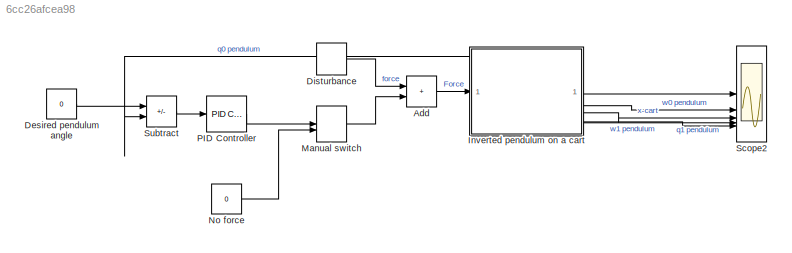
MODEL slx_6cc26afcea98
KIND model
CONFIG AbsTol = 1e-3
CONFIG EnableMultiTasking = on
CONFIG FixedStep = auto
CONFIG MaxStep = auto
CONFIG MinStep = auto
CONFIG RelTol = 1e-3
CONFIG SampleTimeConstraint = Unconstrained
CONFIG SolverName = VariableStepAuto
CONFIG StartTime = 0.0
CONFIG StopTime = 10
BLOCK [Sum] Add
  IconShape = rectangular
BLOCK [Constant] Desired pendulum angle
  Value = 0
BLOCK [DiscretePulseGenerator] Disturbance
  Amplitude = 1000
  Period = 10
  PhaseDelay = 1
  PulseType = Time based
  PulseWidth = 0.01
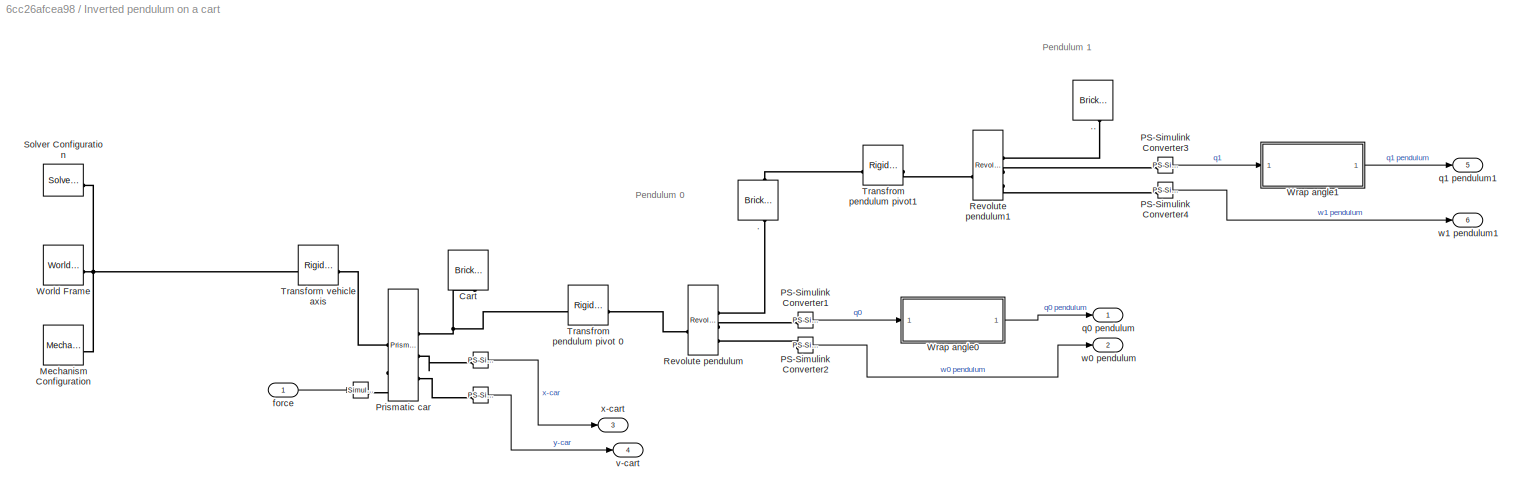
BLOCK [SubSystem] Inverted pendulum on a cart
BLOCK [Reference] Inverted pendulum on a cart/   REF=nesl_utility/PS-Simulink
Converter
  SourceBlock = nesl_utility/PS-Simulink\nConverter
  SourceType = PS-Simulink\nConverter
BLOCK [Reference] Inverted pendulum on a cart/     REF=nesl_utility/Simulink-PS
Converter
  SourceBlock = nesl_utility/Simulink-PS\nConverter
  SourceType = Simulink-PS\nConverter
BLOCK [Reference] Inverted pendulum on a cart/.  REF=sm_lib/Body Elements/Brick Solid
  NameLocation = right
  SourceBlock = sm_lib/Body Elements/Brick Solid
  SourceType = Brick Solid
BLOCK [Reference] Inverted pendulum on a cart/..  REF=sm_lib/Body Elements/Brick Solid
  NameLocation = right
  SourceBlock = sm_lib/Body Elements/Brick Solid
  SourceType = Brick Solid
BLOCK [Reference] Inverted pendulum on a cart/Cart  REF=sm_lib/Body Elements/Brick Solid
  NameLocation = left
  SourceBlock = sm_lib/Body Elements/Brick Solid
  SourceType = Brick Solid
BLOCK [Reference] Inverted pendulum on a cart/Mechanism Configuration  REF=sm_lib/Utilities/Mechanism
Configuration
  SourceBlock = sm_lib/Utilities/Mechanism\nConfiguration
  SourceType = Mechanism\nConfiguration
BLOCK [Reference] Inverted pendulum on a cart/PS-Simulink Converter1  REF=nesl_utility/PS-Simulink
Converter
  SourceBlock = nesl_utility/PS-Simulink\nConverter
  SourceType = PS-Simulink\nConverter
BLOCK [Reference] Inverted pendulum on a cart/PS-Simulink Converter2  REF=nesl_utility/PS-Simulink
Converter
  SourceBlock = nesl_utility/PS-Simulink\nConverter
  SourceType = PS-Simulink\nConverter
BLOCK [Reference] Inverted pendulum on a cart/PS-Simulink Converter3  REF=nesl_utility/PS-Simulink
Converter
  SourceBlock = nesl_utility/PS-Simulink\nConverter
  SourceType = PS-Simulink\nConverter
BLOCK [Reference] Inverted pendulum on a cart/PS-Simulink Converter4  REF=nesl_utility/PS-Simulink
Converter
  SourceBlock = nesl_utility/PS-Simulink\nConverter
  SourceType = PS-Simulink\nConverter
BLOCK [Reference] Inverted pendulum on a cart/Prismatic car  REF=sm_lib/Joints/Prismatic
Joint
  SourceBlock = sm_lib/Joints/Prismatic\nJoint
  SourceType = Prismatic\nJoint
BLOCK [Reference] Inverted pendulum on a cart/Revolute pendulum  REF=sm_lib/Joints/Revolute Joint
  SourceBlock = sm_lib/Joints/Revolute Joint
  SourceType = Revolute Joint
BLOCK [Reference] Inverted pendulum on a cart/Revolute pendulum1  REF=sm_lib/Joints/Revolute Joint
  SourceBlock = sm_lib/Joints/Revolute Joint
  SourceType = Revolute Joint
BLOCK [Reference] Inverted pendulum on a cart/Solver Configuration  REF=nesl_utility/Solver
Configuration
  SourceBlock = nesl_utility/Solver\nConfiguration
  SourceType = Solver\nConfiguration
BLOCK [Reference] Inverted pendulum on a cart/Transform vehicle axis  REF=sm_lib/Frames and
Transforms/Rigid
Transform
  SourceBlock = sm_lib/Frames and\nTransforms/Rigid\nTransform
  SourceType = Rigid\nTransform
BLOCK [Reference] Inverted pendulum on a cart/Transfrom pendulum pivot 0  REF=sm_lib/Frames and
Transforms/Rigid
Transform
  SourceBlock = sm_lib/Frames and\nTransforms/Rigid\nTransform
  SourceType = Rigid\nTransform
BLOCK [Reference] Inverted pendulum on a cart/Transfrom pendulum pivot1  REF=sm_lib/Frames and
Transforms/Rigid
Transform
  SourceBlock = sm_lib/Frames and\nTransforms/Rigid\nTransform
  SourceType = Rigid\nTransform
BLOCK [Reference] Inverted pendulum on a cart/World Frame  REF=sm_lib/Frames and
Transforms/World Frame
  SourceBlock = sm_lib/Frames and\nTransforms/World Frame
  SourceType = World Frame
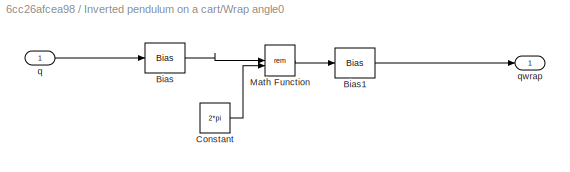
BLOCK [SubSystem] Inverted pendulum on a cart/Wrap angle0
BLOCK [Bias] Inverted pendulum on a cart/Wrap angle0/Bias
  Bias = pi
  SaturateOnIntegerOverflow = off
BLOCK [Bias] Inverted pendulum on a cart/Wrap angle0/Bias1
  Bias = -pi
  SaturateOnIntegerOverflow = off
BLOCK [Constant] Inverted pendulum on a cart/Wrap angle0/Constant
  Value = 2*pi
BLOCK [Math] Inverted pendulum on a cart/Wrap angle0/Math Function
  Operator = rem
BLOCK [Inport] Inverted pendulum on a cart/Wrap angle0/q
BLOCK [Outport] Inverted pendulum on a cart/Wrap angle0/qwrap
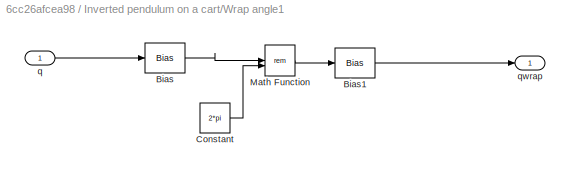
BLOCK [SubSystem] Inverted pendulum on a cart/Wrap angle1
BLOCK [Bias] Inverted pendulum on a cart/Wrap angle1/Bias
  Bias = pi
  SaturateOnIntegerOverflow = off
BLOCK [Bias] Inverted pendulum on a cart/Wrap angle1/Bias1
  Bias = -pi
  SaturateOnIntegerOverflow = off
BLOCK [Constant] Inverted pendulum on a cart/Wrap angle1/Constant
  Value = 2*pi
BLOCK [Math] Inverted pendulum on a cart/Wrap angle1/Math Function
  Operator = rem
BLOCK [Inport] Inverted pendulum on a cart/Wrap angle1/q
BLOCK [Outport] Inverted pendulum on a cart/Wrap angle1/qwrap
BLOCK [Inport] Inverted pendulum on a cart/force
BLOCK [Outport] Inverted pendulum on a cart/q0 pendulum
BLOCK [Outport] Inverted pendulum on a cart/q1 pendulum1
  Port = 5
BLOCK [Outport] Inverted pendulum on a cart/v-cart
  Port = 4
BLOCK [Outport] Inverted pendulum on a cart/w0 pendulum
  Port = 2
BLOCK [Outport] Inverted pendulum on a cart/w1 pendulum1
  Port = 6
BLOCK [Outport] Inverted pendulum on a cart/x-cart
  Port = 3
BLOCK [ManualSwitch] Manual switch
BLOCK [Constant] No force
  Value = 0
BLOCK [Reference] PID Controller  REF=slpidlib/PID Controller
  LibrarySourceBlock = simulink/Continuous/PID Controller
  SourceBlock = slpidlib/PID Controller
  SourceType = PID 1dof
BLOCK [Scope] Scope2
  Floating = off
  NumInputPorts = 5
  ScopeSpecificationString = Simulink.scopes.TimeScopeBlockCfg('CurrentConfiguration', extmgr.ConfigurationSet(extmgr.Configuration('Core','General UI',true),extmgr.Configuration('Core','Source UI',true),extmgr.Configuration('Sources','WiredSimulink',true,'DataLoggingVariableName','ScopeData1'),extmgr.Configuration('Visuals','Time Domain',true,'SerializedDisplays',{struct('MinYLimReal','-0.00051','MaxYLimReal','0.00449','YLab...<+4805ch>
BLOCK [Sum] Subtract
  IconShape = rectangular
  Inputs = +-
ANNOTATION Inverted pendulum on a cart: Pendulum 0
ANNOTATION Inverted pendulum on a cart: Pendulum 1
LINE Add:1 -> Inverted pendulum on a cart:1
LINE Desired pendulum angle:1 -> Subtract:1
LINE Disturbance:1 -> Add:1
NET Inverted pendulum on a cart/ :1 -> Inverted pendulum on a cart/v-cart:1, Inverted pendulum on a cart/x-cart:1
LINE Inverted pendulum on a cart/PS-Simulink Converter1:1 -> Inverted pendulum on a cart/Wrap angle0:1
LINE Inverted pendulum on a cart/PS-Simulink Converter2:1 -> Inverted pendulum on a cart/w0 pendulum:1
LINE Inverted pendulum on a cart/PS-Simulink Converter3:1 -> Inverted pendulum on a cart/Wrap angle1:1
LINE Inverted pendulum on a cart/PS-Simulink Converter4:1 -> Inverted pendulum on a cart/w1 pendulum1:1
LINE Inverted pendulum on a cart/Wrap angle0/Bias1:1 -> Inverted pendulum on a cart/Wrap angle0/qwrap:1
LINE Inverted pendulum on a cart/Wrap angle0/Bias:1 -> Inverted pendulum on a cart/Wrap angle0/Math Function:1
LINE Inverted pendulum on a cart/Wrap angle0/Constant:1 -> Inverted pendulum on a cart/Wrap angle0/Math Function:2
LINE Inverted pendulum on a cart/Wrap angle0/Math Function:1 -> Inverted pendulum on a cart/Wrap angle0/Bias1:1
LINE Inverted pendulum on a cart/Wrap angle0/q:1 -> Inverted pendulum on a cart/Wrap angle0/Bias:1
LINE Inverted pendulum on a cart/Wrap angle0:1 -> Inverted pendulum on a cart/q0 pendulum:1
LINE Inverted pendulum on a cart/Wrap angle1/Bias1:1 -> Inverted pendulum on a cart/Wrap angle1/qwrap:1
LINE Inverted pendulum on a cart/Wrap angle1/Bias:1 -> Inverted pendulum on a cart/Wrap angle1/Math Function:1
LINE Inverted pendulum on a cart/Wrap angle1/Constant:1 -> Inverted pendulum on a cart/Wrap angle1/Math Function:2
LINE Inverted pendulum on a cart/Wrap angle1/Math Function:1 -> Inverted pendulum on a cart/Wrap angle1/Bias1:1
LINE Inverted pendulum on a cart/Wrap angle1/q:1 -> Inverted pendulum on a cart/Wrap angle1/Bias:1
LINE Inverted pendulum on a cart/Wrap angle1:1 -> Inverted pendulum on a cart/q1 pendulum1:1
LINE Inverted pendulum on a cart/force:1 -> Inverted pendulum on a cart/   :1
NET Inverted pendulum on a cart:1 -> Scope2:1, Subtract:2
LINE Inverted pendulum on a cart:2 -> Scope2:2
LINE Inverted pendulum on a cart:3 -> Scope2:3
LINE Inverted pendulum on a cart:5 -> Scope2:4
LINE Inverted pendulum on a cart:6 -> Scope2:5
LINE Manual switch:1 -> Add:2
LINE No force:1 -> Manual switch:2
LINE PID Controller:1 -> Manual switch:1
LINE Subtract:1 -> PID Controller:1
PLINE Inverted pendulum on a cart/   :RConn1 -- Inverted pendulum on a cart/Prismatic car:LConn2
PNET net1: Inverted pendulum on a cart/ :LConn1 -- Inverted pendulum on a cart/Prismatic car:RConn2 -- Inverted pendulum on a cart/Prismatic car:RConn3
PLINE Inverted pendulum on a cart/..:LConn1 -- Inverted pendulum on a cart/Revolute pendulum1:RConn1
PLINE Inverted pendulum on a cart/.:LConn1 -- Inverted pendulum on a cart/Revolute pendulum:RConn1
PLINE Inverted pendulum on a cart/.:RConn1 -- Inverted pendulum on a cart/Transfrom pendulum pivot1:LConn1
PNET net2: Inverted pendulum on a cart/Cart:RConn1 -- Inverted pendulum on a cart/Prismatic car:RConn1 -- Inverted pendulum on a cart/Transfrom pendulum pivot 0:LConn1
PNET net3: Inverted pendulum on a cart/Mechanism Configuration:RConn1 -- Inverted pendulum on a cart/Solver Configuration:RConn1 -- Inverted pendulum on a cart/Transform vehicle axis:LConn1 -- Inverted pendulum on a cart/World Frame:RConn1
PLINE Inverted pendulum on a cart/PS-Simulink Converter1:LConn1 -- Inverted pendulum on a cart/Revolute pendulum:RConn2
PLINE Inverted pendulum on a cart/PS-Simulink Converter2:LConn1 -- Inverted pendulum on a cart/Revolute pendulum:RConn3
PLINE Inverted pendulum on a cart/PS-Simulink Converter3:LConn1 -- Inverted pendulum on a cart/Revolute pendulum1:RConn2
PLINE Inverted pendulum on a cart/PS-Simulink Converter4:LConn1 -- Inverted pendulum on a cart/Revolute pendulum1:RConn3
PLINE Inverted pendulum on a cart/Prismatic car:LConn1 -- Inverted pendulum on a cart/Transform vehicle axis:RConn1
PLINE Inverted pendulum on a cart/Revolute pendulum1:LConn1 -- Inverted pendulum on a cart/Transfrom pendulum pivot1:RConn1
PLINE Inverted pendulum on a cart/Revolute pendulum:LConn1 -- Inverted pendulum on a cart/Transfrom pendulum pivot 0:RConn1
note: NET lines group one-source signal fan-out (src -> all destinations, sorted); 1:1 wires keep LINE; PNET lines group multi-terminal physical nets as a canonical sorted terminal list (undirected conserving connections); 2-terminal nets keep the pairwise PLINE form
